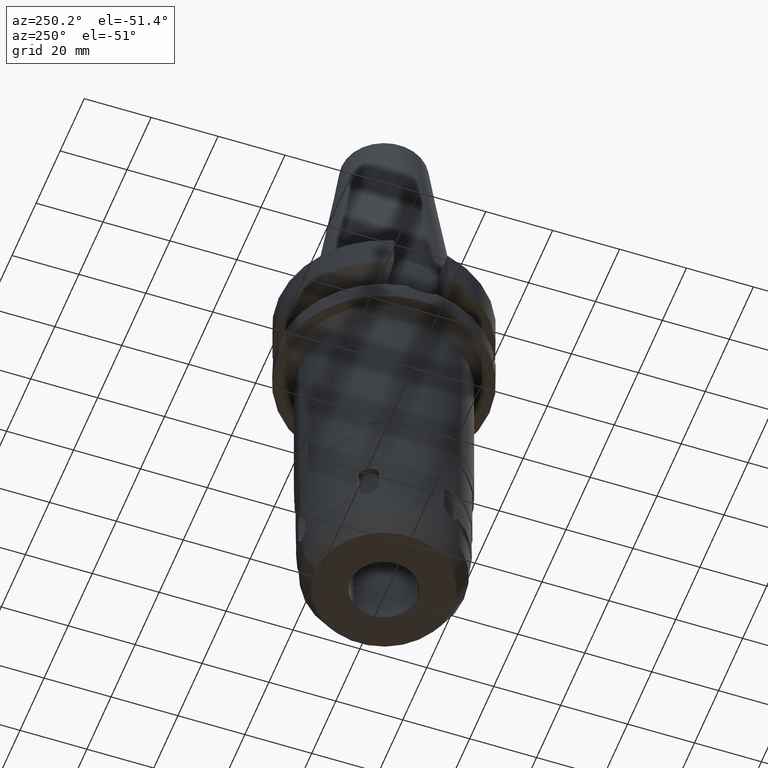
[diagram: clean part render]
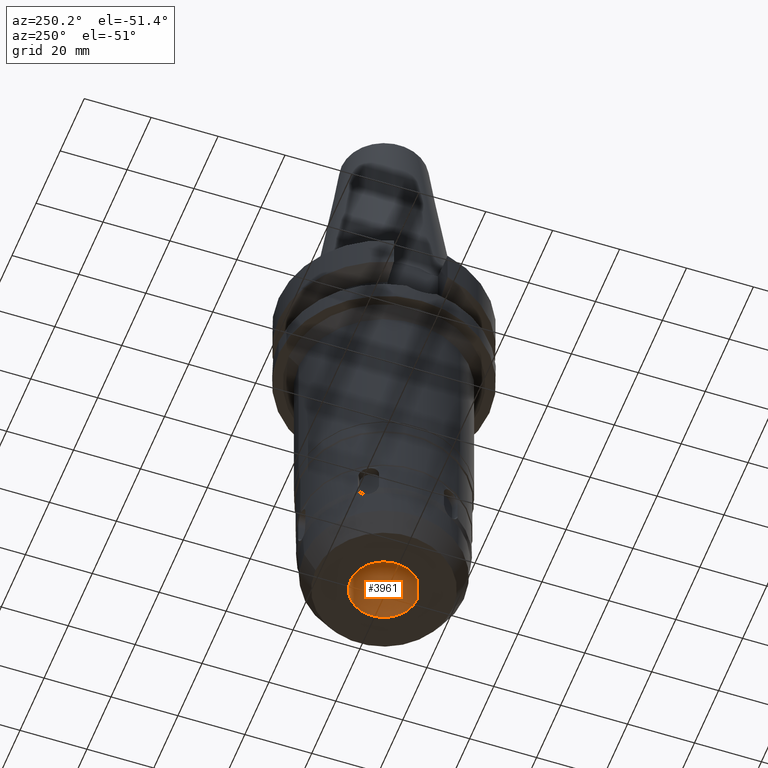
[diagram: same view with one face highlighted and labeled with its STEP entity id]
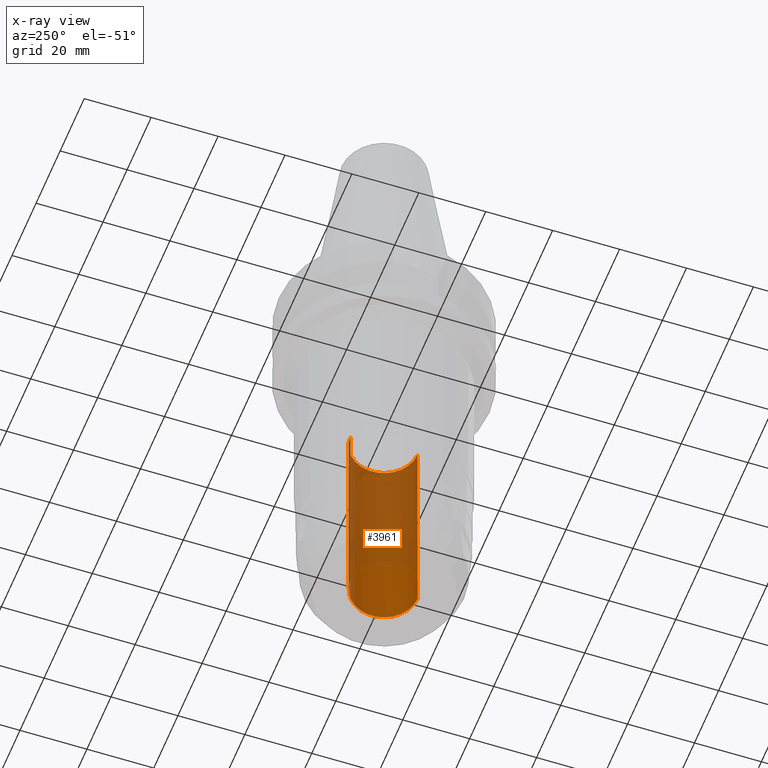
[diagram: x-ray of the same camera — body ghosted, the highlighted face saturated]
A machine part, auxiliary view. The second image highlights one B-rep face of the part: STEP entity #3961.
The next image is the same camera in x-ray: the body ghosted, the highlighted face saturated — about 66% of this face is hidden behind the body in this view.
In plain terms, the highlighted cylindrical surface (edge-blend (fillet) strip) has radius 10 mm, axis along (0, 0, -1).
Its self-contained STEP definition (entity closure, byte-faithful):
#1983=CARTESIAN_POINT('',(0.E0,2.139090564071E-14,-1.2E2));
#1984=DIRECTION('',(0.E0,0.E0,-1.E0));
#1985=DIRECTION('',(0.E0,1.E0,0.E0));
#1986=AXIS2_PLACEMENT_3D('',#1983,#1984,#1985);
#1991=DIRECTION('',(0.E0,0.E0,1.E0));
#1992=VECTOR('',#1991,6.5E1);
#1993=CARTESIAN_POINT('',(0.E0,-1.E1,-1.2E2));
#1994=LINE('',#1993,#1992);
#1998=DIRECTION('',(0.E0,0.E0,1.E0));
#1999=VECTOR('',#1998,6.5E1);
#2000=CARTESIAN_POINT('',(0.E0,1.E1,-1.2E2));
#2001=LINE('',#2000,#1999);
#2021=CARTESIAN_POINT('',(0.E0,2.139090564071E-14,-5.5E1));
#2022=DIRECTION('',(0.E0,0.E0,1.E0));
#2023=DIRECTION('',(0.E0,-1.E0,0.E0));
#2024=AXIS2_PLACEMENT_3D('',#2021,#2022,#2023);
#2331=CARTESIAN_POINT('',(0.E0,-1.E1,-5.5E1));
#2332=CARTESIAN_POINT('',(0.E0,1.E1,-5.5E1));
#2333=VERTEX_POINT('',#2331);
#2334=VERTEX_POINT('',#2332);
#2335=CARTESIAN_POINT('',(0.E0,1.E1,-1.2E2));
#2336=VERTEX_POINT('',#2335);
#2337=CARTESIAN_POINT('',(0.E0,-1.E1,-1.2E2));
#2338=VERTEX_POINT('',#2337);
#3949=CARTESIAN_POINT('',(0.E0,2.139090564071E-14,7.467E1));
#3950=DIRECTION('',(0.E0,0.E0,-1.E0));
#3951=DIRECTION('',(0.E0,-1.E0,0.E0));
#3952=AXIS2_PLACEMENT_3D('',#3949,#3950,#3951);
#3953=CYLINDRICAL_SURFACE('',#3952,1.E1);
#3954=ORIENTED_EDGE('',*,*,#3939,.T.);
#3956=ORIENTED_EDGE('',*,*,#3955,.F.);
#3957=ORIENTED_EDGE('',*,*,#3942,.F.);
#3958=ORIENTED_EDGE('',*,*,#3929,.F.);
#3959=EDGE_LOOP('',(#3954,#3956,#3957,#3958));
#3960=FACE_OUTER_BOUND('',#3959,.F.);
#1987=CIRCLE('',#1986,1.E1);
#2025=CIRCLE('',#2024,1.E1);
#3929=EDGE_CURVE('',#2336,#2338,#1987,.T.);
#3939=EDGE_CURVE('',#2336,#2334,#2001,.T.);
#3942=EDGE_CURVE('',#2338,#2333,#1994,.T.);
#3955=EDGE_CURVE('',#2333,#2334,#2025,.T.);
#3961=ADVANCED_FACE('',(#3960),#3953,.F.);